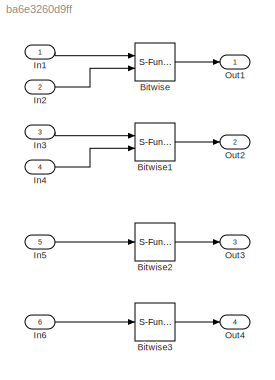
MODEL slx_ba6e3260d9ff
KIND model
CONFIG AbsTol = auto
CONFIG EnableMultiTasking = on
CONFIG FixedStep = 0.200000
CONFIG MaxStep = auto
CONFIG MinStep = auto
CONFIG RelTol = 1e-3
CONFIG SampleTimeConstraint = Unconstrained
CONFIG Solver = FixedStepDiscrete
CONFIG SolverName = FixedStepDiscrete
CONFIG StartTime = 0.0
CONFIG StopTime = 10.0
WORKSPACE source: MAT-file member
WORKSPACE already_pp = 0
BLOCK [S-Function] Bitwise
  EnableBusSupport = off
  FunctionName = sfix_bitop
  Parameters = UseBitMask,NumInputPorts,BitMask,BitMaskRealWorld,logicop
  Ports = [2, 1]
  SFcnIsStateOwnerBlock = off
  SFunctionDeploymentMode = off
BLOCK [S-Function] Bitwise1
  EnableBusSupport = off
  FunctionName = sfix_bitop
  Parameters = UseBitMask,NumInputPorts,BitMask,BitMaskRealWorld,logicop
  Ports = [2, 1]
  SFcnIsStateOwnerBlock = off
  SFunctionDeploymentMode = off
BLOCK [S-Function] Bitwise2
  EnableBusSupport = off
  FunctionName = sfix_bitop
  Parameters = UseBitMask,NumInputPorts,BitMask,BitMaskRealWorld,logicop
  Ports = [1, 1]
  SFcnIsStateOwnerBlock = off
  SFunctionDeploymentMode = off
BLOCK [S-Function] Bitwise3
  EnableBusSupport = off
  FunctionName = sfix_bitop
  Parameters = UseBitMask,NumInputPorts,BitMask,BitMaskRealWorld,logicop
  Ports = [1, 1]
  SFcnIsStateOwnerBlock = off
  SFunctionDeploymentMode = off
BLOCK [Inport] In1
  IconDisplay = Port number
  OutDataTypeStr = int8
  PortDimensions = 1
BLOCK [Inport] In2
  IconDisplay = Port number
  OutDataTypeStr = int8
  Port = 2
  PortDimensions = 1
BLOCK [Inport] In3
  IconDisplay = Port number
  OutDataTypeStr = int8
  Port = 3
  PortDimensions = 1
BLOCK [Inport] In4
  IconDisplay = Port number
  OutDataTypeStr = int8
  Port = 4
  PortDimensions = 3
BLOCK [Inport] In5
  IconDisplay = Port number
  OutDataTypeStr = int8
  Port = 5
  PortDimensions = 3
BLOCK [Inport] In6
  IconDisplay = Port number
  OutDataTypeStr = int8
  Port = 6
  PortDimensions = 3
BLOCK [Outport] Out1
  IconDisplay = Port number
BLOCK [Outport] Out2
  IconDisplay = Port number
  Port = 2
BLOCK [Outport] Out3
  IconDisplay = Port number
  Port = 3
BLOCK [Outport] Out4
  IconDisplay = Port number
  Port = 4
LINE Bitwise1:1 -> Out2:1
LINE Bitwise2:1 -> Out3:1
LINE Bitwise3:1 -> Out4:1
LINE Bitwise:1 -> Out1:1
LINE In1:1 -> Bitwise:1
LINE In2:1 -> Bitwise:2
LINE In3:1 -> Bitwise1:1
LINE In4:1 -> Bitwise1:2
LINE In5:1 -> Bitwise2:1
LINE In6:1 -> Bitwise3:1
